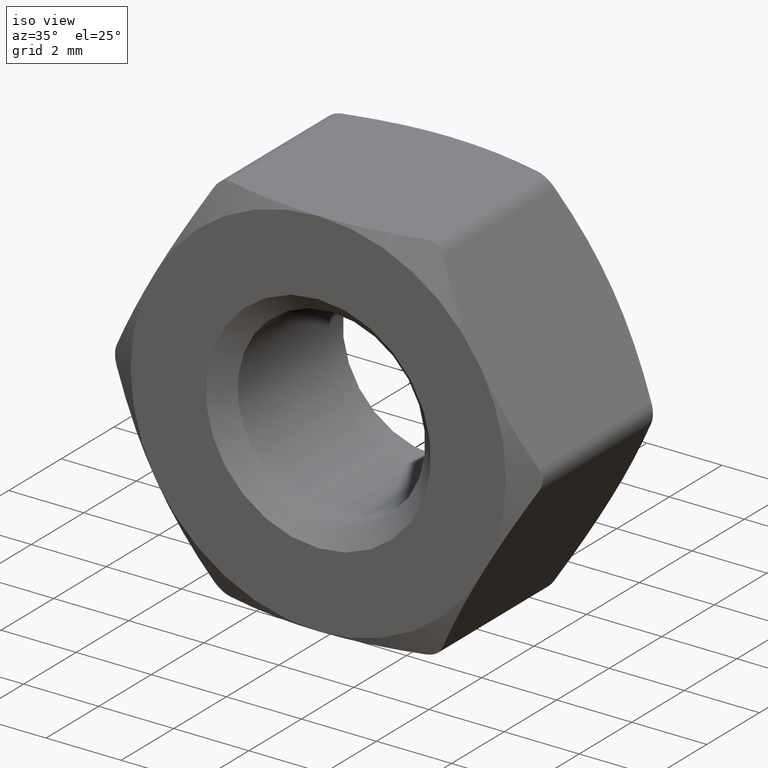
[diagram: clean part render]
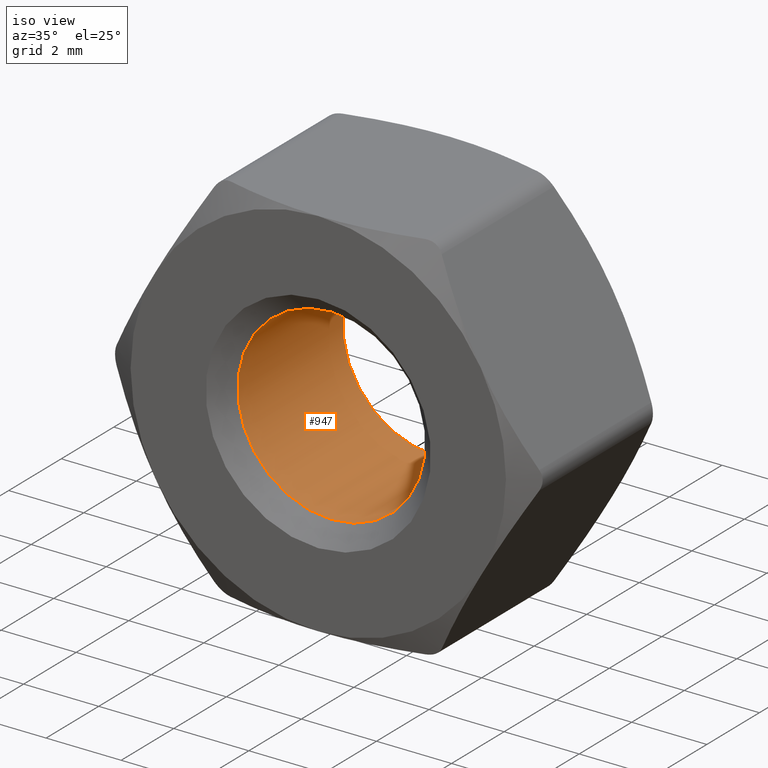
[diagram: same view with one face highlighted and labeled with its STEP entity id]
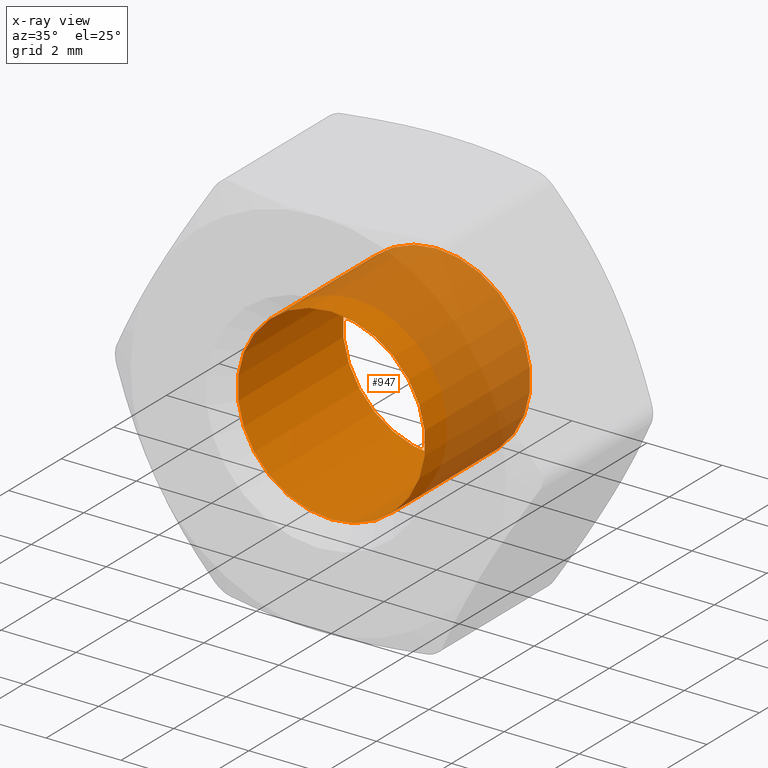
[diagram: x-ray of the same camera — body ghosted, the highlighted face saturated]
A machine part, iso view. The second image highlights one B-rep face of the part: STEP entity #947.
The next image is the same camera in x-ray: the body ghosted, the highlighted face saturated — about 41% of this face is hidden behind the body in this view.
In plain terms, the highlighted cylindrical surface (bore or boss wall) has radius 2.5 mm, axis along (-0, 1, -0).
Its self-contained STEP definition (entity closure, byte-faithful):
#94 = FACE_OUTER_BOUND ( 'NONE', #668, .T. ) ;
#139 = AXIS2_PLACEMENT_3D ( 'NONE', #1336, #352, #919 ) ;
#240 = AXIS2_PLACEMENT_3D ( 'NONE', #545, #954, #309 ) ;
#309 = DIRECTION ( 'NONE',  ( 0.0000000000000000000, 0.0000000000000000000, 1.000000000000000000 ) ) ;
#352 = DIRECTION ( 'NONE',  ( -0.0000000000000000000, -1.000000000000000000, -0.0000000000000000000 ) ) ;
#391 = CIRCLE ( 'NONE', #240, 2.499999999999998700 ) ;
#480 = VERTEX_POINT ( 'NONE', #900 ) ;
#545 = CARTESIAN_POINT ( 'NONE',  ( 0.0000000000000000000, 2.000000000000003100, 0.0000000000000000000 ) ) ;
#648 = EDGE_CURVE ( 'NONE', #480, #480, #1014, .T. ) ;
#662 = DIRECTION ( 'NONE',  ( -0.0000000000000000000, 1.000000000000000000, -0.0000000000000000000 ) ) ;
#668 = EDGE_LOOP ( 'NONE', ( #1501 ) ) ;
#697 = FACE_OUTER_BOUND ( 'NONE', #1268, .T. ) ;
#737 = VERTEX_POINT ( 'NONE', #1154 ) ;
#788 = AXIS2_PLACEMENT_3D ( 'NONE', #1613, #662, #1737 ) ;
#888 = CYLINDRICAL_SURFACE ( 'NONE', #788, 2.499999999999998700 ) ;
#900 = CARTESIAN_POINT ( 'NONE',  ( 0.0000000000000000000, -2.000000000000003100, 2.499999999999998700 ) ) ;
#919 = DIRECTION ( 'NONE',  ( 0.0000000000000000000, 0.0000000000000000000, 1.000000000000000000 ) ) ;
#947 = ADVANCED_FACE ( 'NONE', ( #94, #697 ), #888, .F. ) ;
#954 = DIRECTION ( 'NONE',  ( 0.0000000000000000000, 1.000000000000000000, 0.0000000000000000000 ) ) ;
#1014 = CIRCLE ( 'NONE', #139, 2.499999999999998700 ) ;
#1154 = CARTESIAN_POINT ( 'NONE',  ( 0.0000000000000000000, 2.000000000000003100, 2.499999999999998700 ) ) ;
#1262 = EDGE_CURVE ( 'NONE', #737, #737, #391, .T. ) ;
#1268 = EDGE_LOOP ( 'NONE', ( #1272 ) ) ;
#1272 = ORIENTED_EDGE ( 'NONE', *, *, #648, .T. ) ;
#1336 = CARTESIAN_POINT ( 'NONE',  ( 0.0000000000000000000, -2.000000000000003100, 0.0000000000000000000 ) ) ;
#1501 = ORIENTED_EDGE ( 'NONE', *, *, #1262, .T. ) ;
#1613 = CARTESIAN_POINT ( 'NONE',  ( 0.0000000000000000000, 2.500000000000000000, 0.0000000000000000000 ) ) ;
#1737 = DIRECTION ( 'NONE',  ( 0.0000000000000000000, 0.0000000000000000000, 1.000000000000000000 ) ) ;